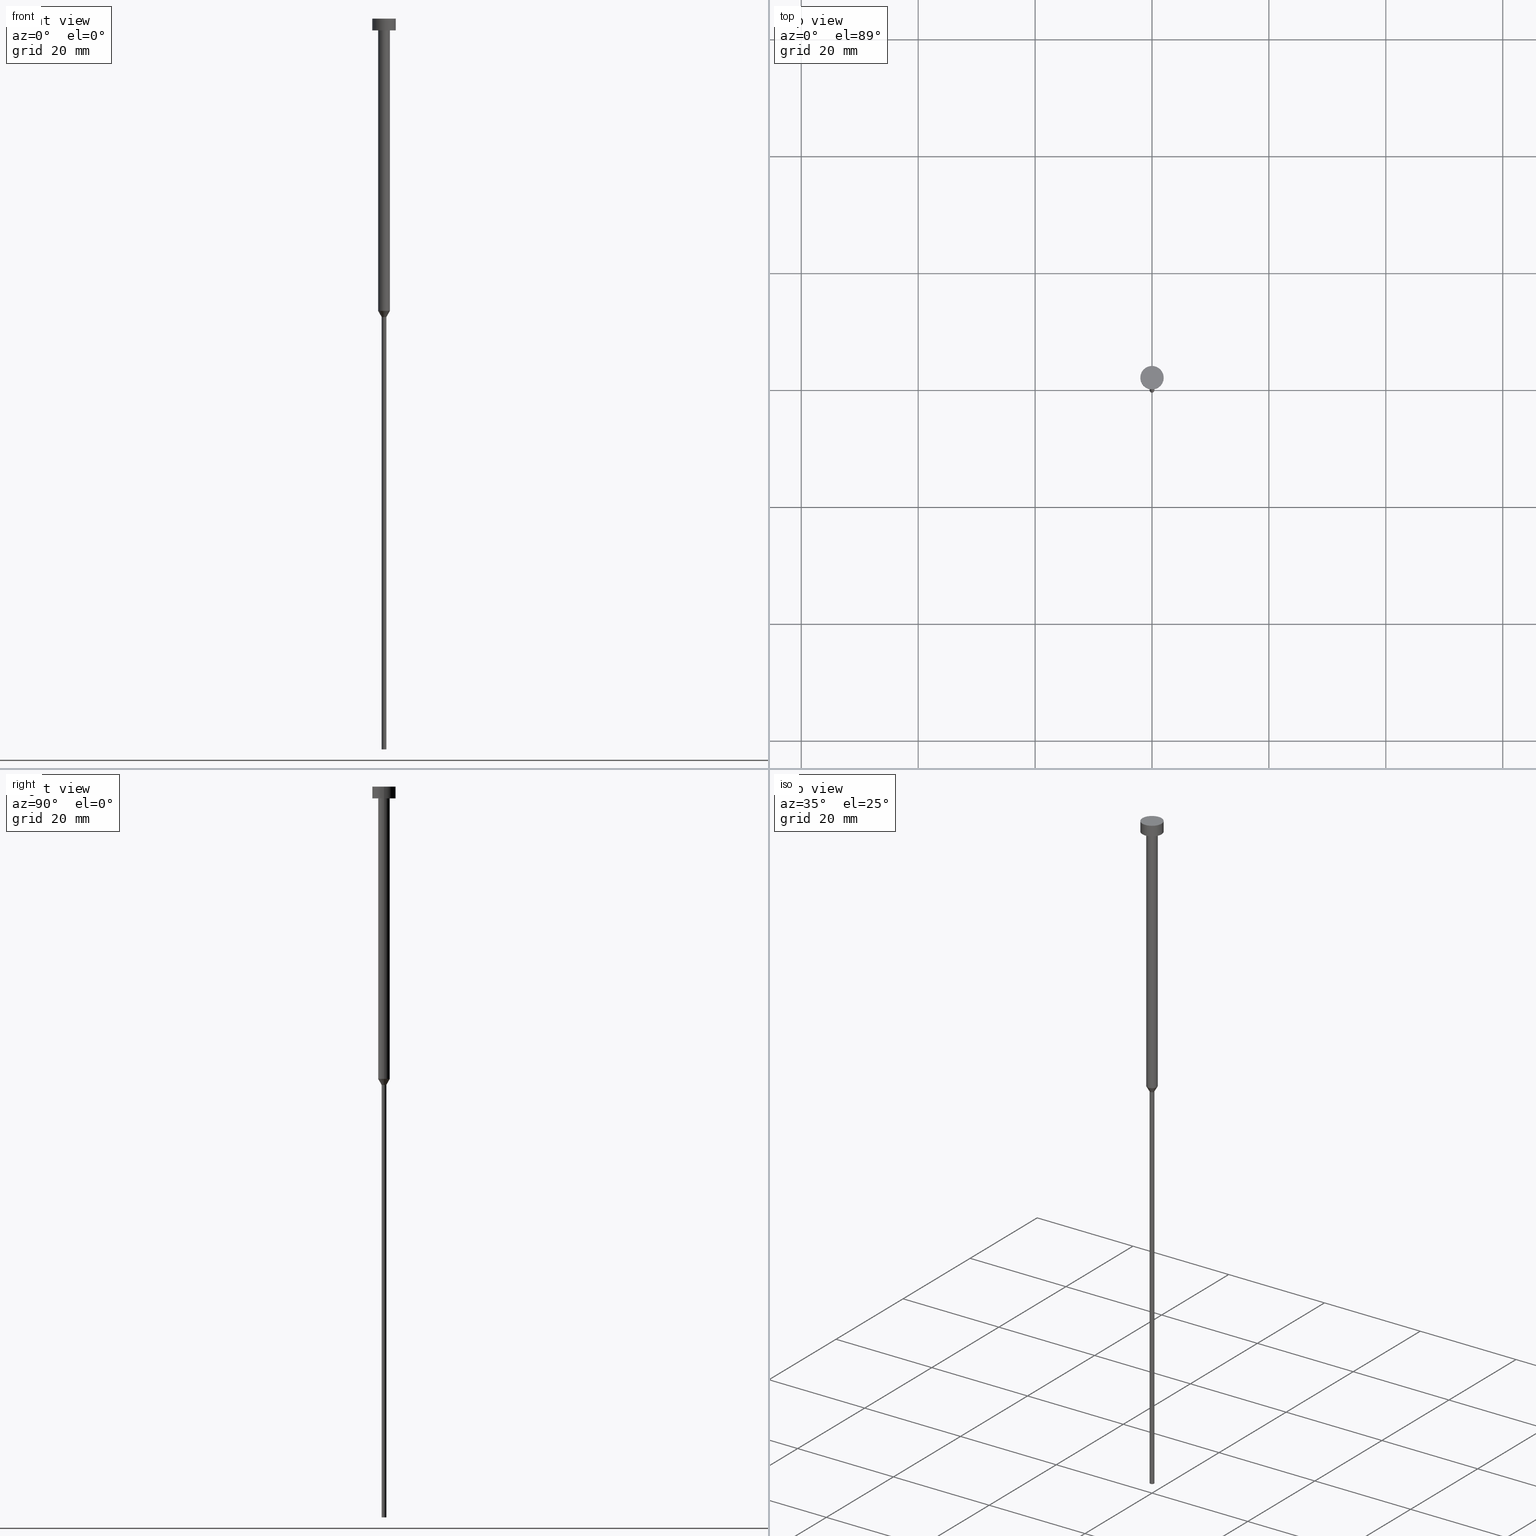
[diagram: canonical four-view strip — front | top / right | iso, engineering-drawing reading convention]
A machine part, canonical four-view strip (front | top / right | iso — engineering-drawing reading convention). The complete STEP part file that produces these views, byte-faithful:
ISO-10303-21;
HEADER;
FILE_DESCRIPTION (( 'STEP AP203' ),
    '1' );
FILE_NAME ('c68f.STEP',
    '2023-02-13T11:53:41',
    ( '' ),
    ( '' ),
    'SwSTEP 2.0',
    'SolidWorks 2019',
    '' );
FILE_SCHEMA (( 'CONFIG_CONTROL_DESIGN' ));
ENDSEC;

DATA;
#1 = VERTEX_POINT ( 'NONE', #44 ) ;
#2 = VECTOR ( 'NONE', #73, 1000.000000000000000 ) ;
#3 = DIRECTION ( 'NONE',  ( 1.000000000000000000, 0.000000000000000000, 0.000000000000000000 ) ) ;
#4 = CARTESIAN_POINT ( 'NONE',  ( 0.000000000000000000, -2.000000000000000000, -2.000000000000000444 ) ) ;
#5 = EDGE_CURVE ( 'NONE', #203, #1, #145, .T. ) ;
#6 = CARTESIAN_POINT ( 'NONE',  ( -2.000000000000000000, 2.449293598294706414E-16, -2.000000000000000444 ) ) ;
#7 = LINE ( 'NONE', #185, #189 ) ;
#8 = AXIS2_PLACEMENT_3D ( 'NONE', #131, #99, #331 ) ;
#9 = CARTESIAN_POINT ( 'NONE',  ( 0.000000000000000000, 0.000000000000000000, 0.000000000000000000 ) ) ;
#10 = CALENDAR_DATE ( 2023, 13, 2 ) ;
#11 = ADVANCED_FACE ( 'NONE', ( #38 ), #15, .T. ) ;
#12 = CARTESIAN_POINT ( 'NONE',  ( -0.4000000000000000777, 4.898587196589413692E-17, -125.0000000000000000 ) ) ;
#13 = ADVANCED_FACE ( 'NONE', ( #304 ), #215, .T. ) ;
#14 = ORIENTED_EDGE ( 'NONE', *, *, #125, .F. ) ;
#15 = CYLINDRICAL_SURFACE ( 'NONE', #160, 1.000000000000003331 ) ;
#16 = VECTOR ( 'NONE', #126, 1000.000000000000000 ) ;
#17 = VERTEX_POINT ( 'NONE', #328 ) ;
#18 = APPROVAL_DATE_TIME ( #175, #158 ) ;
#19 = ORIENTED_EDGE ( 'NONE', *, *, #35, .F. ) ;
#20 = CALENDAR_DATE ( 2023, 13, 2 ) ;
#21 = LINE ( 'NONE', #90, #319 ) ;
#22 = CIRCLE ( 'NONE', #296, 2.000000000000000000 ) ;
#23 = ORIENTED_EDGE ( 'NONE', *, *, #285, .T. ) ;
#24 = FACE_OUTER_BOUND ( 'NONE', #322, .T. ) ;
#25 = CARTESIAN_POINT ( 'NONE',  ( 0.000000000000000000, 0.000000000000000000, -2.000000000000000444 ) ) ;
#26 = DIRECTION ( 'NONE',  ( -0.000000000000000000, -0.000000000000000000, 1.000000000000000000 ) ) ;
#27 = VERTEX_POINT ( 'NONE', #95 ) ;
#28 = APPLICATION_PROTOCOL_DEFINITION ( 'international standard', 'config_control_design', 1994, #193 ) ;
#29 = SECURITY_CLASSIFICATION ( '', '', #286 ) ;
#30 = EDGE_CURVE ( 'NONE', #39, #27, #148, .T. ) ;
#31 = CARTESIAN_POINT ( 'NONE',  ( -0.3999999999999999667, 4.898587196589412459E-17, -51.03923048454132783 ) ) ;
#32 = CYLINDRICAL_SURFACE ( 'NONE', #147, 1.000000000000003331 ) ;
#33 = AXIS2_PLACEMENT_3D ( 'NONE', #129, #264, #45 ) ;
#34 = CARTESIAN_POINT ( 'NONE',  ( 0.000000000000000000, 0.000000000000000000, 0.000000000000000000 ) ) ;
#35 = EDGE_CURVE ( 'NONE', #233, #67, #207, .T. ) ;
#36 = CARTESIAN_POINT ( 'NONE',  ( 0.000000000000000000, 0.000000000000000000, -50.00000000000000000 ) ) ;
#37 = VECTOR ( 'NONE', #333, 1000.000000000000000 ) ;
#38 = FACE_OUTER_BOUND ( 'NONE', #152, .T. ) ;
#39 = VERTEX_POINT ( 'NONE', #6 ) ;
#40 = ORIENTED_EDGE ( 'NONE', *, *, #326, .T. ) ;
#41 = CIRCLE ( 'NONE', #33, 1.000000000000003109 ) ;
#42 = PERSON_AND_ORGANIZATION_ROLE ( 'design_supplier' ) ;
#43 = APPROVAL ( #336, 'NEUR�EN�' ) ;
#44 = CARTESIAN_POINT ( 'NONE',  ( 1.000000000000003553, 0.000000000000000000, -2.000000000000000444 ) ) ;
#45 = DIRECTION ( 'NONE',  ( 1.000000000000000000, 0.000000000000000000, 0.000000000000000000 ) ) ;
#46 = APPROVAL_PERSON_ORGANIZATION ( #55, #265, #251 ) ;
#47 = CARTESIAN_POINT ( 'NONE',  ( 0.000000000000000000, 0.000000000000000000, -2.449293598294705921E-16 ) ) ;
#48 = DIRECTION ( 'NONE',  ( 1.000000000000000000, 0.000000000000000000, 0.000000000000000000 ) ) ;
#49 = DIRECTION ( 'NONE',  ( 1.000000000000000000, 0.000000000000000000, 0.000000000000000000 ) ) ;
#50 = CARTESIAN_POINT ( 'NONE',  ( 0.000000000000000000, 0.000000000000000000, -125.0000000000000000 ) ) ;
#51 = CIRCLE ( 'NONE', #58, 1.000000000000003553 ) ;
#52 = DIRECTION ( 'NONE',  ( -0.000000000000000000, -0.000000000000000000, 1.000000000000000000 ) ) ;
#53 = DIRECTION ( 'NONE',  ( -0.5000000000000021094, 6.123233995736791920E-17, 0.8660254037844373753 ) ) ;
#54 = CARTESIAN_POINT ( 'NONE',  ( 0.3999999999999999667, 0.000000000000000000, 0.000000000000000000 ) ) ;
#55 = PERSON_AND_ORGANIZATION ( #321, #196 ) ;
#56 = DIRECTION ( 'NONE',  ( -0.000000000000000000, -0.000000000000000000, 1.000000000000000000 ) ) ;
#57 = PERSON_AND_ORGANIZATION_ROLE ( 'creator' ) ;
#58 = AXIS2_PLACEMENT_3D ( 'NONE', #98, #182, #298 ) ;
#59 = DIRECTION ( 'NONE',  ( 1.000000000000000000, 0.000000000000000000, 0.000000000000000000 ) ) ;
#60 = CALENDAR_DATE ( 2023, 13, 2 ) ;
#61 = AXIS2_PLACEMENT_3D ( 'NONE', #36, #135, #338 ) ;
#62 = CC_DESIGN_DATE_AND_TIME_ASSIGNMENT ( #139, #232, ( #29 ) ) ;
#63 = ORIENTED_EDGE ( 'NONE', *, *, #257, .T. ) ;
#64 = ADVANCED_FACE ( 'NONE', ( #272 ), #32, .T. ) ;
#65 = PERSON_AND_ORGANIZATION_ROLE ( 'classification_officer' ) ;
#66 = VERTEX_POINT ( 'NONE', #239 ) ;
#67 = VERTEX_POINT ( 'NONE', #212 ) ;
#68 = CARTESIAN_POINT ( 'NONE',  ( 2.000000000000000000, 0.000000000000000000, -2.449293598294705921E-16 ) ) ;
#69 = ORIENTED_EDGE ( 'NONE', *, *, #213, .F. ) ;
#70 = CARTESIAN_POINT ( 'NONE',  ( -2.000000000000000000, 2.449293598294706414E-16, 0.000000000000000000 ) ) ;
#71 =( LENGTH_UNIT ( ) NAMED_UNIT ( * ) SI_UNIT ( .MILLI., .METRE. ) );
#72 = FACE_OUTER_BOUND ( 'NONE', #176, .T. ) ;
#73 = DIRECTION ( 'NONE',  ( -0.000000000000000000, -0.000000000000000000, 1.000000000000000000 ) ) ;
#74 = CARTESIAN_POINT ( 'NONE',  ( 0.000000000000000000, 0.000000000000000000, -50.00000000000000000 ) ) ;
#75 = CC_DESIGN_PERSON_AND_ORGANIZATION_ASSIGNMENT ( #144, #65, ( #29 ) ) ;
#76 = DIRECTION ( 'NONE',  ( 1.000000000000000000, 0.000000000000000000, 0.000000000000000000 ) ) ;
#77 = CARTESIAN_POINT ( 'NONE',  ( 0.000000000000000000, 0.000000000000000000, -50.00000000000000000 ) ) ;
#78 = ADVANCED_FACE ( 'NONE', ( #72 ), #311, .T. ) ;
#79 = DIRECTION ( 'NONE',  ( -0.000000000000000000, -0.000000000000000000, 1.000000000000000000 ) ) ;
#80 = APPROVAL_PERSON_ORGANIZATION ( #277, #43, #83 ) ;
#81 = AXIS2_PLACEMENT_3D ( 'NONE', #128, #52, #303 ) ;
#82 = CC_DESIGN_PERSON_AND_ORGANIZATION_ASSIGNMENT ( #313, #109, ( #209 ) ) ;
#83 = APPROVAL_ROLE ( '' ) ;
#84 = EDGE_LOOP ( 'NONE', ( #87, #287, #146, #127 ) ) ;
#85 = DIRECTION ( 'NONE',  ( 1.000000000000000000, 0.000000000000000000, 0.000000000000000000 ) ) ;
#86 = SHAPE_DEFINITION_REPRESENTATION ( #262, #101 ) ;
#87 = ORIENTED_EDGE ( 'NONE', *, *, #236, .F. ) ;
#88 = ORIENTED_EDGE ( 'NONE', *, *, #299, .T. ) ;
#89 = ORIENTED_EDGE ( 'NONE', *, *, #30, .F. ) ;
#90 = CARTESIAN_POINT ( 'NONE',  ( -1.000000000000003109, 1.224646799147356905E-16, -50.00000000000000000 ) ) ;
#91 = EDGE_LOOP ( 'NONE', ( #23, #347, #143, #197 ) ) ;
#92 = DIRECTION ( 'NONE',  ( 1.000000000000000000, 0.000000000000000000, 0.000000000000000000 ) ) ;
#93 = CARTESIAN_POINT ( 'NONE',  ( 0.000000000000000000, 0.000000000000000000, -2.449293598294705921E-16 ) ) ;
#94 = DIRECTION ( 'NONE',  ( -0.000000000000000000, -0.000000000000000000, 1.000000000000000000 ) ) ;
#95 = CARTESIAN_POINT ( 'NONE',  ( -2.000000000000000000, 2.449293598294706414E-16, -2.449293598294705921E-16 ) ) ;
#96 = CC_DESIGN_APPROVAL ( #265, ( #187 ) ) ;
#97 = DIRECTION ( 'NONE',  ( -0.000000000000000000, -0.000000000000000000, 1.000000000000000000 ) ) ;
#98 = CARTESIAN_POINT ( 'NONE',  ( 0.000000000000000000, 0.000000000000000000, -2.000000000000000444 ) ) ;
#99 = DIRECTION ( 'NONE',  ( 0.000000000000000000, 0.000000000000000000, 1.000000000000000000 ) ) ;
#100 = DIRECTION ( 'NONE',  ( 0.000000000000000000, 0.000000000000000000, -1.000000000000000000 ) ) ;
#101 = ADVANCED_BREP_SHAPE_REPRESENTATION ( 'c68f', ( #226, #8 ), #291 ) ;
#102 = FACE_OUTER_BOUND ( 'NONE', #140, .T. ) ;
#103 = MECHANICAL_CONTEXT ( 'NONE', #193, 'mechanical' ) ;
#104 = CC_DESIGN_DATE_AND_TIME_ASSIGNMENT ( #165, #279, ( #187 ) ) ;
#105 = CYLINDRICAL_SURFACE ( 'NONE', #315, 0.3999999999999999667 ) ;
#106 = PERSON_AND_ORGANIZATION_ROLE ( 'creator' ) ;
#107 = APPROVAL_DATE_TIME ( #278, #265 ) ;
#108 = CC_DESIGN_PERSON_AND_ORGANIZATION_ASSIGNMENT ( #220, #57, ( #241 ) ) ;
#109 = PERSON_AND_ORGANIZATION_ROLE ( 'design_owner' ) ;
#110 = APPROVAL_PERSON_ORGANIZATION ( #255, #158, #119 ) ;
#111 = CARTESIAN_POINT ( 'NONE',  ( 1.000000000000003331, 0.000000000000000000, 0.000000000000000000 ) ) ;
#112 = EDGE_CURVE ( 'NONE', #39, #260, #229, .T. ) ;
#113 = ORIENTED_EDGE ( 'NONE', *, *, #326, .F. ) ;
#114 = AXIS2_PLACEMENT_3D ( 'NONE', #77, #211, #3 ) ;
#115 = VERTEX_POINT ( 'NONE', #31 ) ;
#116 = ORIENTED_EDGE ( 'NONE', *, *, #274, .F. ) ;
#117 = EDGE_LOOP ( 'NONE', ( #89, #258, #118, #69 ) ) ;
#118 = ORIENTED_EDGE ( 'NONE', *, *, #306, .T. ) ;
#119 = APPROVAL_ROLE ( '' ) ;
#120 = DIRECTION ( 'NONE',  ( 0.000000000000000000, -0.000000000000000000, 1.000000000000000000 ) ) ;
#121 = CARTESIAN_POINT ( 'NONE',  ( 1.000000000000003109, 0.000000000000000000, -50.00000000000000000 ) ) ;
#122 = DIRECTION ( 'NONE',  ( 1.000000000000000000, 0.000000000000000000, 0.000000000000000000 ) ) ;
#123 = ORIENTED_EDGE ( 'NONE', *, *, #285, .F. ) ;
#124 = CYLINDRICAL_SURFACE ( 'NONE', #166, 0.3999999999999999667 ) ;
#125 = EDGE_CURVE ( 'NONE', #115, #66, #21, .T. ) ;
#126 = DIRECTION ( 'NONE',  ( -0.000000000000000000, -0.000000000000000000, 1.000000000000000000 ) ) ;
#127 = ORIENTED_EDGE ( 'NONE', *, *, #171, .F. ) ;
#128 = CARTESIAN_POINT ( 'NONE',  ( 0.000000000000000000, 0.000000000000000000, 0.000000000000000000 ) ) ;
#129 = CARTESIAN_POINT ( 'NONE',  ( 0.000000000000000000, 0.000000000000000000, -50.00000000000000000 ) ) ;
#130 = CIRCLE ( 'NONE', #141, 2.000000000000000000 ) ;
#131 = CARTESIAN_POINT ( 'NONE',  ( 0.000000000000000000, 0.000000000000000000, 0.000000000000000000 ) ) ;
#132 = CARTESIAN_POINT ( 'NONE',  ( 0.000000000000000000, 0.000000000000000000, -125.0000000000000000 ) ) ;
#133 = CC_DESIGN_SECURITY_CLASSIFICATION ( #29, ( #241 ) ) ;
#134 = DATE_AND_TIME ( #60, #289 ) ;
#135 = DIRECTION ( 'NONE',  ( -0.000000000000000000, -0.000000000000000000, 1.000000000000000000 ) ) ;
#136 = ADVANCED_FACE ( 'NONE', ( #24 ), #352, .T. ) ;
#137 = PERSON_AND_ORGANIZATION ( #321, #196 ) ;
#138 = CARTESIAN_POINT ( 'NONE',  ( 0.000000000000000000, 0.000000000000000000, 0.000000000000000000 ) ) ;
#139 = DATE_AND_TIME ( #198, #223 ) ;
#140 = EDGE_LOOP ( 'NONE', ( #14, #341, #167, #169 ) ) ;
#141 = AXIS2_PLACEMENT_3D ( 'NONE', #93, #206, #325 ) ;
#142 = ORIENTED_EDGE ( 'NONE', *, *, #299, .F. ) ;
#143 = ORIENTED_EDGE ( 'NONE', *, *, #179, .F. ) ;
#144 = PERSON_AND_ORGANIZATION ( #321, #196 ) ;
#145 = LINE ( 'NONE', #111, #191 ) ;
#146 = ORIENTED_EDGE ( 'NONE', *, *, #274, .T. ) ;
#147 = AXIS2_PLACEMENT_3D ( 'NONE', #156, #178, #307 ) ;
#148 = LINE ( 'NONE', #70, #16 ) ;
#149 = ORIENTED_EDGE ( 'NONE', *, *, #112, .F. ) ;
#150 = DIRECTION ( 'NONE',  ( -0.000000000000000000, -0.000000000000000000, 1.000000000000000000 ) ) ;
#151 = FACE_OUTER_BOUND ( 'NONE', #268, .T. ) ;
#152 = EDGE_LOOP ( 'NONE', ( #142, #228, #343, #353 ) ) ;
#153 = DIRECTION ( 'NONE',  ( -0.000000000000000000, -0.000000000000000000, 1.000000000000000000 ) ) ;
#154 = DIRECTION ( 'NONE',  ( 1.000000000000000000, 0.000000000000000000, 0.000000000000000000 ) ) ;
#155 = PRODUCT_RELATED_PRODUCT_CATEGORY ( 'detail', '', ( #209 ) ) ;
#156 = CARTESIAN_POINT ( 'NONE',  ( 0.000000000000000000, 0.000000000000000000, 0.000000000000000000 ) ) ;
#157 = AXIS2_PLACEMENT_3D ( 'NONE', #183, #26, #210 ) ;
#158 = APPROVAL ( #288, 'NEUR�EN�' ) ;
#159 = APPROVAL_DATE_TIME ( #134, #43 ) ;
#160 = AXIS2_PLACEMENT_3D ( 'NONE', #138, #256, #85 ) ;
#161 = FACE_OUTER_BOUND ( 'NONE', #117, .T. ) ;
#162 = AXIS2_PLACEMENT_3D ( 'NONE', #355, #204, #154 ) ;
#163 = DIRECTION ( 'NONE',  ( 1.000000000000000000, 0.000000000000000000, 0.000000000000000000 ) ) ;
#164 = APPLICATION_PROTOCOL_DEFINITION ( 'international standard', 'config_control_design', 1994, #280 ) ;
#165 = DATE_AND_TIME ( #310, #173 ) ;
#166 = AXIS2_PLACEMENT_3D ( 'NONE', #190, #308, #205 ) ;
#167 = ORIENTED_EDGE ( 'NONE', *, *, #317, .T. ) ;
#168 = EDGE_CURVE ( 'NONE', #66, #203, #41, .T. ) ;
#169 = ORIENTED_EDGE ( 'NONE', *, *, #168, .F. ) ;
#170 = CC_DESIGN_APPROVAL ( #43, ( #241 ) ) ;
#171 = EDGE_CURVE ( 'NONE', #115, #202, #271, .T. ) ;
#172 = AXIS2_PLACEMENT_3D ( 'NONE', #4, #100, #330 ) ;
#173 = LOCAL_TIME ( 12, 53, 41.00000000000000000, #222 ) ;
#174 = ORIENTED_EDGE ( 'NONE', *, *, #213, .T. ) ;
#175 = DATE_AND_TIME ( #20, #259 ) ;
#176 = EDGE_LOOP ( 'NONE', ( #318, #342, #316, #348 ) ) ;
#177 = ORIENTED_EDGE ( 'NONE', *, *, #236, .T. ) ;
#178 = DIRECTION ( 'NONE',  ( -0.000000000000000000, -0.000000000000000000, 1.000000000000000000 ) ) ;
#179 = EDGE_CURVE ( 'NONE', #199, #27, #22, .T. ) ;
#180 = DIRECTION ( 'NONE',  ( -0.000000000000000000, -0.000000000000000000, 1.000000000000000000 ) ) ;
#181 = CONICAL_SURFACE ( 'NONE', #114, 1.000000000000003109, 0.5235987755983013692 ) ;
#182 = DIRECTION ( 'NONE',  ( -0.000000000000000000, -0.000000000000000000, 1.000000000000000000 ) ) ;
#183 = CARTESIAN_POINT ( 'NONE',  ( 0.000000000000000000, 0.000000000000000000, -2.000000000000000444 ) ) ;
#184 = ADVANCED_FACE ( 'NONE', ( #323, #151 ), #244, .T. ) ;
#185 = CARTESIAN_POINT ( 'NONE',  ( -1.000000000000003331, 1.224646799147357151E-16, 0.000000000000000000 ) ) ;
#186 = CARTESIAN_POINT ( 'NONE',  ( 0.000000000000000000, 0.000000000000000000, -1.224646799147352961E-16 ) ) ;
#187 = PRODUCT_DEFINITION ( 'NEZN�M�', '', #241, #221 ) ;
#188 = DIRECTION ( 'NONE',  ( -0.000000000000000000, -0.000000000000000000, 1.000000000000000000 ) ) ;
#189 = VECTOR ( 'NONE', #153, 1000.000000000000000 ) ;
#190 = CARTESIAN_POINT ( 'NONE',  ( 0.000000000000000000, 0.000000000000000000, 0.000000000000000000 ) ) ;
#191 = VECTOR ( 'NONE', #284, 1000.000000000000000 ) ;
#192 = AXIS2_PLACEMENT_3D ( 'NONE', #25, #150, #327 ) ;
#193 = APPLICATION_CONTEXT ( 'configuration controlled 3d designs of mechanical parts and assemblies' ) ;
#194 = PERSON_AND_ORGANIZATION ( #321, #196 ) ;
#195 = COORDINATED_UNIVERSAL_TIME_OFFSET ( 1, 0, .AHEAD. ) ;
#196 = ORGANIZATION ( 'NEUR�EN�', 'NEUR�EN�', '' ) ;
#197 = ORIENTED_EDGE ( 'NONE', *, *, #306, .F. ) ;
#198 = CALENDAR_DATE ( 2023, 13, 2 ) ;
#199 = VERTEX_POINT ( 'NONE', #68 ) ;
#200 = AXIS2_PLACEMENT_3D ( 'NONE', #74, #240, #238 ) ;
#201 = AXIS2_PLACEMENT_3D ( 'NONE', #132, #301, #246 ) ;
#202 = VERTEX_POINT ( 'NONE', #295 ) ;
#203 = VERTEX_POINT ( 'NONE', #332 ) ;
#204 = DIRECTION ( 'NONE',  ( -0.000000000000000000, -0.000000000000000000, 1.000000000000000000 ) ) ;
#205 = DIRECTION ( 'NONE',  ( 1.000000000000000000, 0.000000000000000000, 0.000000000000000000 ) ) ;
#206 = DIRECTION ( 'NONE',  ( -0.000000000000000000, -0.000000000000000000, 1.000000000000000000 ) ) ;
#207 = CIRCLE ( 'NONE', #281, 0.4000000000000000222 ) ;
#208 = LINE ( 'NONE', #54, #2 ) ;
#209 = PRODUCT ( 'c68f', 'c68f', '', ( #103 ) ) ;
#210 = DIRECTION ( 'NONE',  ( 1.000000000000000000, 0.000000000000000000, 0.000000000000000000 ) ) ;
#211 = DIRECTION ( 'NONE',  ( -0.000000000000000000, -0.000000000000000000, 1.000000000000000000 ) ) ;
#212 = CARTESIAN_POINT ( 'NONE',  ( 0.4000000000000000222, 0.000000000000000000, -125.0000000000000000 ) ) ;
#213 = EDGE_CURVE ( 'NONE', #27, #199, #130, .T. ) ;
#214 = LINE ( 'NONE', #269, #37 ) ;
#215 = PLANE ( 'NONE',  #275 ) ;
#216 = DIRECTION ( 'NONE',  ( 1.000000000000000000, 0.000000000000000000, 0.000000000000000000 ) ) ;
#217 = APPROVAL_STATUS ( 'not_yet_approved' ) ;
#218 = EDGE_CURVE ( 'NONE', #1, #17, #51, .T. ) ;
#219 = LINE ( 'NONE', #337, #312 ) ;
#220 = PERSON_AND_ORGANIZATION ( #321, #196 ) ;
#221 = DESIGN_CONTEXT ( 'detailed design', #280, 'design' ) ;
#222 = COORDINATED_UNIVERSAL_TIME_OFFSET ( 1, 0, .AHEAD. ) ;
#223 = LOCAL_TIME ( 12, 53, 41.00000000000000000, #261 ) ;
#224 = AXIS2_PLACEMENT_3D ( 'NONE', #34, #79, #163 ) ;
#225 = ADVANCED_FACE ( 'NONE', ( #267 ), #105, .T. ) ;
#226 = MANIFOLD_SOLID_BREP ( 'Rotovat1', #252 ) ;
#227 = ORIENTED_EDGE ( 'NONE', *, *, #5, .F. ) ;
#228 = ORIENTED_EDGE ( 'NONE', *, *, #168, .T. ) ;
#229 = CIRCLE ( 'NONE', #157, 2.000000000000000000 ) ;
#230 = ORIENTED_EDGE ( 'NONE', *, *, #218, .F. ) ;
#231 = ORIENTED_EDGE ( 'NONE', *, *, #351, .F. ) ;
#232 = DATE_TIME_ROLE ( 'classification_date' ) ;
#233 = VERTEX_POINT ( 'NONE', #12 ) ;
#234 = EDGE_LOOP ( 'NONE', ( #40, #177, #231, #116 ) ) ;
#235 = CC_DESIGN_PERSON_AND_ORGANIZATION_ASSIGNMENT ( #137, #42, ( #241 ) ) ;
#236 = EDGE_CURVE ( 'NONE', #233, #115, #219, .T. ) ;
#237 = AXIS2_PLACEMENT_3D ( 'NONE', #305, #97, #92 ) ;
#238 = DIRECTION ( 'NONE',  ( 1.000000000000000000, 0.000000000000000000, 0.000000000000000000 ) ) ;
#239 = CARTESIAN_POINT ( 'NONE',  ( -1.000000000000003109, 1.224646799147356905E-16, -50.00000000000000000 ) ) ;
#240 = DIRECTION ( 'NONE',  ( -0.000000000000000000, -0.000000000000000000, 1.000000000000000000 ) ) ;
#241 = PRODUCT_DEFINITION_FORMATION_WITH_SPECIFIED_SOURCE ( 'LIBOVOLN�', '', #209, .NOT_KNOWN. ) ;
#242 = ORIENTED_EDGE ( 'NONE', *, *, #218, .T. ) ;
#243 = CIRCLE ( 'NONE', #192, 1.000000000000003553 ) ;
#244 = PLANE ( 'NONE',  #172 ) ;
#245 = CARTESIAN_POINT ( 'NONE',  ( 0.000000000000000000, 0.000000000000000000, -2.000000000000000444 ) ) ;
#246 = DIRECTION ( 'NONE',  ( -1.000000000000000000, 0.000000000000000000, -0.000000000000000000 ) ) ;
#247 = CC_DESIGN_APPROVAL ( #158, ( #29 ) ) ;
#248 = CARTESIAN_POINT ( 'NONE',  ( 2.000000000000000000, 0.000000000000000000, -2.000000000000000444 ) ) ;
#249 = ADVANCED_FACE ( 'NONE', ( #161 ), #309, .T. ) ;
#250 = LOCAL_TIME ( 12, 53, 41.00000000000000000, #339 ) ;
#251 = APPROVAL_ROLE ( '' ) ;
#252 = CLOSED_SHELL ( 'NONE', ( #344, #64, #78, #225, #136, #346, #340, #11, #184, #249, #13 ) ) ;
#253 = CIRCLE ( 'NONE', #61, 1.000000000000003109 ) ;
#254 = CC_DESIGN_PERSON_AND_ORGANIZATION_ASSIGNMENT ( #194, #106, ( #187 ) ) ;
#255 = PERSON_AND_ORGANIZATION ( #321, #196 ) ;
#256 = DIRECTION ( 'NONE',  ( -0.000000000000000000, -0.000000000000000000, 1.000000000000000000 ) ) ;
#257 = EDGE_CURVE ( 'NONE', #203, #66, #253, .T. ) ;
#258 = ORIENTED_EDGE ( 'NONE', *, *, #112, .T. ) ;
#259 = LOCAL_TIME ( 12, 53, 41.00000000000000000, #345 ) ;
#260 = VERTEX_POINT ( 'NONE', #248 ) ;
#261 = COORDINATED_UNIVERSAL_TIME_OFFSET ( 1, 0, .AHEAD. ) ;
#262 = PRODUCT_DEFINITION_SHAPE ( 'NONE', 'NONE',  #187 ) ;
#263 = AXIS2_PLACEMENT_3D ( 'NONE', #324, #180, #48 ) ;
#264 = DIRECTION ( 'NONE',  ( -0.000000000000000000, -0.000000000000000000, 1.000000000000000000 ) ) ;
#265 = APPROVAL ( #217, 'NEUR�EN�' ) ;
#266 = DIRECTION ( 'NONE',  ( 0.5000000000000021094, 0.000000000000000000, 0.8660254037844373753 ) ) ;
#267 = FACE_OUTER_BOUND ( 'NONE', #234, .T. ) ;
#268 = EDGE_LOOP ( 'NONE', ( #123, #149 ) ) ;
#269 = CARTESIAN_POINT ( 'NONE',  ( 2.000000000000000000, 0.000000000000000000, 0.000000000000000000 ) ) ;
#270 = DIRECTION ( 'NONE',  ( -0.000000000000000000, -0.000000000000000000, 1.000000000000000000 ) ) ;
#271 = CIRCLE ( 'NONE', #162, 0.3999999999999999667 ) ;
#272 = FACE_OUTER_BOUND ( 'NONE', #294, .T. ) ;
#273 = FACE_OUTER_BOUND ( 'NONE', #84, .T. ) ;
#274 = EDGE_CURVE ( 'NONE', #67, #202, #208, .T. ) ;
#275 = AXIS2_PLACEMENT_3D ( 'NONE', #186, #120, #76 ) ;
#276 = CIRCLE ( 'NONE', #237, 0.4000000000000000222 ) ;
#277 = PERSON_AND_ORGANIZATION ( #321, #196 ) ;
#278 = DATE_AND_TIME ( #10, #250 ) ;
#279 = DATE_TIME_ROLE ( 'creation_date' ) ;
#280 = APPLICATION_CONTEXT ( 'configuration controlled 3d designs of mechanical parts and assemblies' ) ;
#281 = AXIS2_PLACEMENT_3D ( 'NONE', #50, #188, #49 ) ;
#282 = CIRCLE ( 'NONE', #263, 0.3999999999999999667 ) ;
#283 = VECTOR ( 'NONE', #266, 1000.000000000000227 ) ;
#284 = DIRECTION ( 'NONE',  ( -0.000000000000000000, -0.000000000000000000, 1.000000000000000000 ) ) ;
#285 = EDGE_CURVE ( 'NONE', #260, #39, #349, .T. ) ;
#286 = SECURITY_CLASSIFICATION_LEVEL ( 'unclassified' ) ;
#287 = ORIENTED_EDGE ( 'NONE', *, *, #35, .T. ) ;
#288 = APPROVAL_STATUS ( 'not_yet_approved' ) ;
#289 = LOCAL_TIME ( 12, 53, 41.00000000000000000, #195 ) ;
#290 = EDGE_LOOP ( 'NONE', ( #242, #293 ) ) ;
#291 =( GEOMETRIC_REPRESENTATION_CONTEXT ( 3 ) GLOBAL_UNCERTAINTY_ASSIGNED_CONTEXT ( ( #292 ) ) GLOBAL_UNIT_ASSIGNED_CONTEXT ( ( #71, #297, #354 ) ) REPRESENTATION_CONTEXT ( 'NONE', 'WORKASPACE' ) );
#292 = UNCERTAINTY_MEASURE_WITH_UNIT (LENGTH_MEASURE( 1.000000000000000082E-05 ), #71, 'distance_accuracy_value', 'NONE');
#293 = ORIENTED_EDGE ( 'NONE', *, *, #302, .T. ) ;
#294 = EDGE_LOOP ( 'NONE', ( #63, #88, #230, #227 ) ) ;
#295 = CARTESIAN_POINT ( 'NONE',  ( 0.3999999999999999667, 0.000000000000000000, -51.03923048454132783 ) ) ;
#296 = AXIS2_PLACEMENT_3D ( 'NONE', #47, #270, #122 ) ;
#297 =( NAMED_UNIT ( * ) PLANE_ANGLE_UNIT ( ) SI_UNIT ( $, .RADIAN. ) );
#298 = DIRECTION ( 'NONE',  ( 1.000000000000000000, 0.000000000000000000, 0.000000000000000000 ) ) ;
#299 = EDGE_CURVE ( 'NONE', #66, #17, #7, .T. ) ;
#300 = CYLINDRICAL_SURFACE ( 'NONE', #81, 2.000000000000000000 ) ;
#301 = DIRECTION ( 'NONE',  ( 0.000000000000000000, 0.000000000000000000, -1.000000000000000000 ) ) ;
#302 = EDGE_CURVE ( 'NONE', #17, #1, #243, .T. ) ;
#303 = DIRECTION ( 'NONE',  ( 1.000000000000000000, 0.000000000000000000, 0.000000000000000000 ) ) ;
#304 = FACE_OUTER_BOUND ( 'NONE', #314, .T. ) ;
#305 = CARTESIAN_POINT ( 'NONE',  ( 0.000000000000000000, 0.000000000000000000, -125.0000000000000000 ) ) ;
#306 = EDGE_CURVE ( 'NONE', #260, #199, #214, .T. ) ;
#307 = DIRECTION ( 'NONE',  ( 1.000000000000000000, 0.000000000000000000, 0.000000000000000000 ) ) ;
#308 = DIRECTION ( 'NONE',  ( -0.000000000000000000, -0.000000000000000000, 1.000000000000000000 ) ) ;
#309 = CYLINDRICAL_SURFACE ( 'NONE', #224, 2.000000000000000000 ) ;
#310 = CALENDAR_DATE ( 2023, 13, 2 ) ;
#311 = CONICAL_SURFACE ( 'NONE', #200, 1.000000000000003109, 0.5235987755983013692 ) ;
#312 = VECTOR ( 'NONE', #56, 1000.000000000000000 ) ;
#313 = PERSON_AND_ORGANIZATION ( #321, #196 ) ;
#314 = EDGE_LOOP ( 'NONE', ( #320, #174 ) ) ;
#315 = AXIS2_PLACEMENT_3D ( 'NONE', #9, #335, #59 ) ;
#316 = ORIENTED_EDGE ( 'NONE', *, *, #257, .F. ) ;
#317 = EDGE_CURVE ( 'NONE', #202, #203, #350, .T. ) ;
#318 = ORIENTED_EDGE ( 'NONE', *, *, #351, .T. ) ;
#319 = VECTOR ( 'NONE', #53, 1000.000000000000227 ) ;
#320 = ORIENTED_EDGE ( 'NONE', *, *, #179, .T. ) ;
#321 = PERSON ( 'NEUR�EN�', 'NEUR�EN�', 'NEUR�EN�', ('NEUR�EN�'), ('NEUR�EN�'), ('NEUR�EN�') ) ;
#322 = EDGE_LOOP ( 'NONE', ( #113, #19 ) ) ;
#323 = FACE_BOUND ( 'NONE', #290, .T. ) ;
#324 = CARTESIAN_POINT ( 'NONE',  ( 0.000000000000000000, 0.000000000000000000, -51.03923048454132783 ) ) ;
#325 = DIRECTION ( 'NONE',  ( 1.000000000000000000, 0.000000000000000000, 0.000000000000000000 ) ) ;
#326 = EDGE_CURVE ( 'NONE', #67, #233, #276, .T. ) ;
#327 = DIRECTION ( 'NONE',  ( 1.000000000000000000, 0.000000000000000000, 0.000000000000000000 ) ) ;
#328 = CARTESIAN_POINT ( 'NONE',  ( -1.000000000000003553, 1.224646799147357398E-16, -2.000000000000000444 ) ) ;
#329 = FACE_OUTER_BOUND ( 'NONE', #91, .T. ) ;
#330 = DIRECTION ( 'NONE',  ( -1.000000000000000000, 0.000000000000000000, -0.000000000000000000 ) ) ;
#331 = DIRECTION ( 'NONE',  ( 1.000000000000000000, 0.000000000000000000, 0.000000000000000000 ) ) ;
#332 = CARTESIAN_POINT ( 'NONE',  ( 1.000000000000003109, 0.000000000000000000, -50.00000000000000000 ) ) ;
#333 = DIRECTION ( 'NONE',  ( -0.000000000000000000, -0.000000000000000000, 1.000000000000000000 ) ) ;
#334 = AXIS2_PLACEMENT_3D ( 'NONE', #245, #94, #216 ) ;
#335 = DIRECTION ( 'NONE',  ( -0.000000000000000000, -0.000000000000000000, 1.000000000000000000 ) ) ;
#336 = APPROVAL_STATUS ( 'not_yet_approved' ) ;
#337 = CARTESIAN_POINT ( 'NONE',  ( -0.3999999999999999667, 4.898587196589412459E-17, 0.000000000000000000 ) ) ;
#338 = DIRECTION ( 'NONE',  ( 1.000000000000000000, 0.000000000000000000, 0.000000000000000000 ) ) ;
#339 = COORDINATED_UNIVERSAL_TIME_OFFSET ( 1, 0, .AHEAD. ) ;
#340 = ADVANCED_FACE ( 'NONE', ( #102 ), #181, .T. ) ;
#341 = ORIENTED_EDGE ( 'NONE', *, *, #171, .T. ) ;
#342 = ORIENTED_EDGE ( 'NONE', *, *, #125, .T. ) ;
#343 = ORIENTED_EDGE ( 'NONE', *, *, #5, .T. ) ;
#344 = ADVANCED_FACE ( 'NONE', ( #329 ), #300, .T. ) ;
#345 = COORDINATED_UNIVERSAL_TIME_OFFSET ( 1, 0, .AHEAD. ) ;
#346 = ADVANCED_FACE ( 'NONE', ( #273 ), #124, .T. ) ;
#347 = ORIENTED_EDGE ( 'NONE', *, *, #30, .T. ) ;
#348 = ORIENTED_EDGE ( 'NONE', *, *, #317, .F. ) ;
#349 = CIRCLE ( 'NONE', #334, 2.000000000000000000 ) ;
#350 = LINE ( 'NONE', #121, #283 ) ;
#351 = EDGE_CURVE ( 'NONE', #202, #115, #282, .T. ) ;
#352 = PLANE ( 'NONE',  #201 ) ;
#353 = ORIENTED_EDGE ( 'NONE', *, *, #302, .F. ) ;
#354 =( NAMED_UNIT ( * ) SI_UNIT ( $, .STERADIAN. ) SOLID_ANGLE_UNIT ( ) );
#355 = CARTESIAN_POINT ( 'NONE',  ( 0.000000000000000000, 0.000000000000000000, -51.03923048454132783 ) ) ;
ENDSEC;
END-ISO-10303-21;
